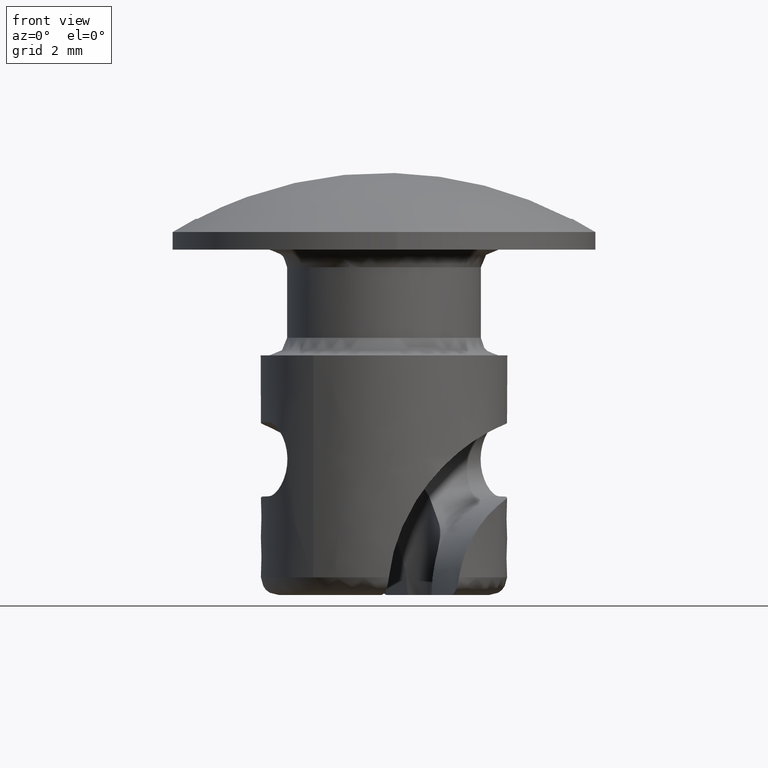
[diagram: clean part render]
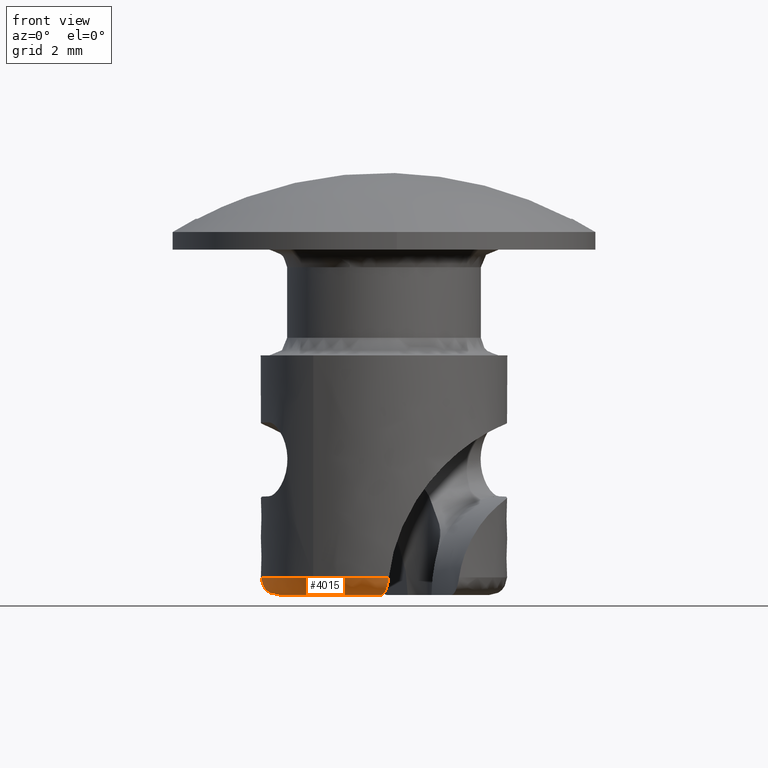
[diagram: same view with one face highlighted and labeled with its STEP entity id]
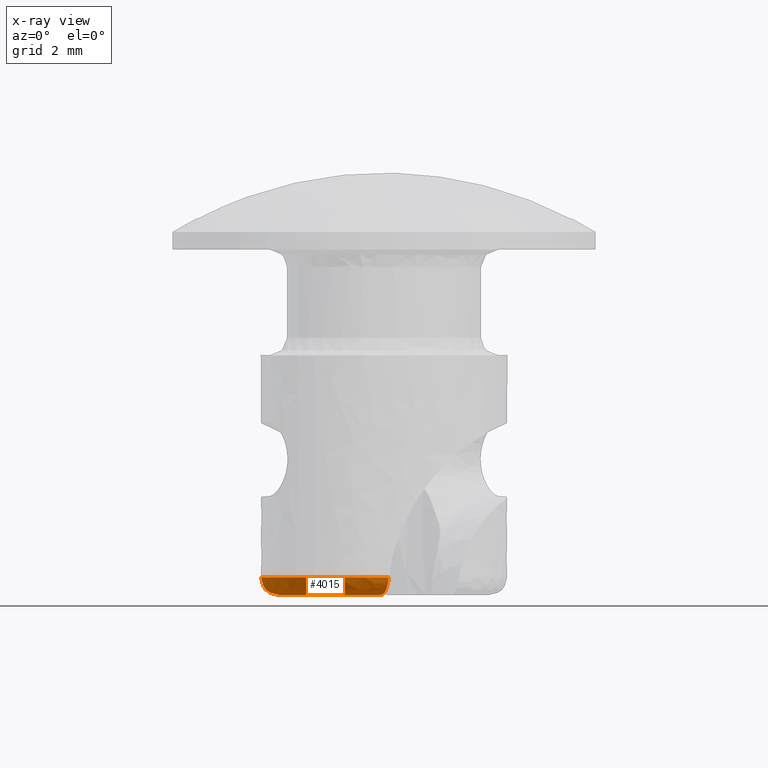
[diagram: x-ray of the same camera — body ghosted, the highlighted face saturated]
A machine part, front view. The second image highlights one B-rep face of the part: STEP entity #4015.
The next image is the same camera in x-ray: the body ghosted, the highlighted face saturated — about 0% of this face is hidden behind the body in this view.
In plain terms, the highlighted face is a freeform B-spline surface patch.
Its self-contained STEP definition (entity closure, byte-faithful):
#81=CARTESIAN_POINT('',(-2.008126187107555,-2.866605870476942,-9.299999999999999));
#82=VERTEX_POINT('',#81);
#88=CARTESIAN_POINT('',(0.137757022448160,-3.497287949649875,-9.299999999999999));
#89=VERTEX_POINT('',#88);
#90=CARTESIAN_POINT('',(-2.008126187107556,-2.866605870476942,-9.299999999999999));
#91=CARTESIAN_POINT('',(-1.041516516738341,-3.543739146619942,-9.299999999999999));
#92=CARTESIAN_POINT('',(0.137757022448157,-3.497287949649874,-9.299999999999999));
#100=(BOUNDED_CURVE()B_SPLINE_CURVE(2,(#90,#91,#92),.UNSPECIFIED.,.F.,.U.)B_SPLINE_CURVE_WITH_KNOTS((3,3),(0.742816691669973,1.0),.UNSPECIFIED.)CURVE()GEOMETRIC_REPRESENTATION_ITEM()RATIONAL_B_SPLINE_CURVE((0.903601217125584,0.900749427261948,1.0))REPRESENTATION_ITEM(''));
#101=EDGE_CURVE('',#82,#89,#100,.T.);
#431=CARTESIAN_POINT('',(-2.130075441178700,2.777188977165175,-9.299999999999999));
#432=VERTEX_POINT('',#431);
#474=CARTESIAN_POINT('',(-2.130075441178700,2.777188977165175,-9.299999999999999));
#475=CARTESIAN_POINT('',(-4.162072481353428,1.218668103212144,-9.299999999999999));
#476=CARTESIAN_POINT('',(-3.291595106735741,-1.189706540838253,-9.299999999999999));
#477=CARTESIAN_POINT('',(-2.915156806922763,-2.231209149354868,-9.299999999999999));
#478=CARTESIAN_POINT('',(-2.008126187107556,-2.866605870476942,-9.299999999999999));
#486=(BOUNDED_CURVE()B_SPLINE_CURVE(2,(#474,#475,#476,#477,#478),.UNSPECIFIED.,.F.,.U.)B_SPLINE_CURVE_WITH_KNOTS((3,2,3),(0.0,0.500000000000000,0.742816691669973),.UNSPECIFIED.)CURVE()GEOMETRIC_REPRESENTATION_ITEM()RATIONAL_B_SPLINE_CURVE((1.0,0.807043129310145,1.0,0.906293702048197,0.903601217125584))REPRESENTATION_ITEM(''));
#487=EDGE_CURVE('',#432,#82,#486,.T.);
#3531=CARTESIAN_POINT('',(-1.906978887296520,2.315908369668660,-9.800006999999789));
#3532=VERTEX_POINT('',#3531);
#3538=CARTESIAN_POINT('',(-2.130075441178700,2.777188977165175,-9.299999999999999));
#3539=CARTESIAN_POINT('',(-2.125248877906973,2.780890901965653,-9.332899340804433));
#3540=CARTESIAN_POINT('',(-2.119729902955236,2.781053801753919,-9.365716333681750));
#3541=CARTESIAN_POINT('',(-2.110320937446444,2.775826541301858,-9.414804443367130));
#3542=CARTESIAN_POINT('',(-2.106977078736828,2.773141069430067,-9.431211534933011));
#3543=CARTESIAN_POINT('',(-2.100041807436692,2.766040416150092,-9.463185300594144));
#3544=CARTESIAN_POINT('',(-2.092828270430283,2.757206855467864,-9.494496216401574));
#3545=CARTESIAN_POINT('',(-2.085017062095540,2.745003613596474,-9.524504294065780));
#3546=CARTESIAN_POINT('',(-2.076872109017019,2.731114848867014,-9.553852135704148));
#3547=CARTESIAN_POINT('',(-2.072609281010737,2.723277994270384,-9.568263199975457));
#3548=CARTESIAN_POINT('',(-2.059540317493385,2.697765907314260,-9.609566312355250));
#3549=CARTESIAN_POINT('',(-2.050398595498169,2.678031845807793,-9.634796694971222));
#3550=CARTESIAN_POINT('',(-2.035838023217665,2.644611688102727,-9.669322346367618));
#3551=CARTESIAN_POINT('',(-2.030815868831854,2.632764958773301,-9.680321288044235));
#3552=CARTESIAN_POINT('',(-2.020633988278147,2.608246634400372,-9.700805109014388));
#3553=CARTESIAN_POINT('',(-2.015462974297361,2.595552246454874,-9.710326475880224));
#3554=CARTESIAN_POINT('',(-1.999665425720986,2.556236964224384,-9.736814954541460));
#3555=CARTESIAN_POINT('',(-1.988693749045460,2.528235780237710,-9.751789893178833));
#3556=CARTESIAN_POINT('',(-1.966011162085480,2.469745217525326,-9.775914135017572));
#3557=CARTESIAN_POINT('',(-1.954506623200346,2.439795495012194,-9.784880573741907));
#3558=CARTESIAN_POINT('',(-1.931033005658395,2.378619179042488,-9.796940408065810));
#3559=CARTESIAN_POINT('',(-1.918946362609865,2.347084703695429,-9.800006767132572));
#3560=CARTESIAN_POINT('',(-1.906978887296520,2.315908369668660,-9.800006999999789));
#3561=B_SPLINE_CURVE_WITH_KNOTS('',3,(#3538,#3539,#3540,#3541,#3542,#3543,#3544,#3545,#3546,#3547,#3548,#3549,#3550,#3551,#3552,#3553,#3554,#3555,#3556,#3557,#3558,#3559,#3560),.UNSPECIFIED.,.F.,.U.,(4,2,2,1,2,2,2,2,2,2,2,4),(0.0,0.125000000000004,0.187500000000003,0.250000000000002,0.312500000000001,0.374999999999999,0.499999999999996,0.562499999999997,0.624999999999997,0.749999999999998,0.874999999999999,1.0),.UNSPECIFIED.);
#3562=EDGE_CURVE('',#432,#3532,#3561,.T.);
#3686=CARTESIAN_POINT('',(-0.080239420365395,-2.998926747257910,-9.800000000001170));
#3687=VERTEX_POINT('',#3686);
#3688=CARTESIAN_POINT('',(0.137757022448160,-3.497287949649875,-9.299999999999999));
#3689=CARTESIAN_POINT('',(0.134102867682884,-3.497431885604612,-9.334202884381082));
#3690=CARTESIAN_POINT('',(0.129589844882187,-3.494129095371487,-9.367712395802629));
#3691=CARTESIAN_POINT('',(0.118891358146238,-3.481011714675267,-9.433413832473939));
#3692=CARTESIAN_POINT('',(0.112618220102262,-3.471019069305557,-9.465954372819562));
#3693=CARTESIAN_POINT('',(0.098681584985865,-3.445126832580370,-9.527432733812978));
#3694=CARTESIAN_POINT('',(0.091032741933450,-3.429306977811069,-9.556446125955979));
#3695=CARTESIAN_POINT('',(0.078429111792636,-3.401372692172008,-9.597405823558662));
#3696=CARTESIAN_POINT('',(0.074012932576576,-3.391295789858078,-9.610693899675384));
#3697=CARTESIAN_POINT('',(0.064932056200169,-3.370087816938951,-9.635927491983178));
#3698=CARTESIAN_POINT('',(0.060261712047506,-3.358947556465782,-9.647904057013557));
#3699=CARTESIAN_POINT('',(0.045839360085445,-3.323983519515394,-9.681974645052417));
#3700=CARTESIAN_POINT('',(0.035672044523436,-3.298610745217398,-9.702237473268339));
#3701=CARTESIAN_POINT('',(0.014085067352248,-3.243862334759288,-9.737713504289664));
#3702=CARTESIAN_POINT('',(0.002982176416606,-3.215294919215809,-9.752409762534812));
#3703=CARTESIAN_POINT('',(-0.019939439519147,-3.155978028656515,-9.776104987689294));
#3704=CARTESIAN_POINT('',(-0.031871956698846,-3.124929721468300,-9.785146280699308));
#3705=CARTESIAN_POINT('',(-0.055962146940490,-3.062189559215258,-9.797071961601784));
#3706=CARTESIAN_POINT('',(-0.068065354128634,-3.030641279068961,-9.799999999890142));
#3707=CARTESIAN_POINT('',(-0.080239420365395,-2.998926747257910,-9.800000000001170));
#3708=B_SPLINE_CURVE_WITH_KNOTS('',3,(#3688,#3689,#3690,#3691,#3692,#3693,#3694,#3695,#3696,#3697,#3698,#3699,#3700,#3701,#3702,#3703,#3704,#3705,#3706,#3707),.UNSPECIFIED.,.F.,.U.,(4,2,2,2,2,2,2,2,2,4),(0.0,0.124999999999998,0.249999999999997,0.374999999999995,0.437499999999994,0.499999999999993,0.624999999999994,0.749999999999996,0.874999999999998,1.0),.UNSPECIFIED.);
#3709=EDGE_CURVE('',#89,#3687,#3708,.T.);
#3971=CARTESIAN_POINT('',(-1.498174620061049,2.558919597381507,-9.798789673025866));
#3972=CARTESIAN_POINT('',(-3.624602004453096,1.313956863124874,-9.798789673025862));
#3973=CARTESIAN_POINT('',(-2.789929111312573,-1.004436285639283,-9.798789673025866));
#3974=CARTESIAN_POINT('',(-1.957239696026213,-3.317320112721133,-9.798789673025864));
#3975=CARTESIAN_POINT('',(0.469908169868510,-2.927760750120992,-9.798789673025864));
#3976=CARTESIAN_POINT('',(-1.787952580963013,3.053867578152317,-9.838768718210641));
#3977=CARTESIAN_POINT('',(-4.325675006136167,1.568103299335330,-9.838768718210639));
#3978=CARTESIAN_POINT('',(-3.329559110453959,-1.198715039805226,-9.838768718210643));
#3979=CARTESIAN_POINT('',(-2.335810338270670,-3.958958440491120,-9.838768718210641));
#3980=CARTESIAN_POINT('',(0.560798129858702,-3.494050239222268,-9.838768718210638));
#3981=CARTESIAN_POINT('',(-1.767753467183850,3.019366988296417,-9.265231623115978));
#3982=CARTESIAN_POINT('',(-4.276806371391069,1.550387898324136,-9.265231623115982));
#3983=CARTESIAN_POINT('',(-3.291943938763951,-1.185172744704323,-9.265231623115978));
#3984=CARTESIAN_POINT('',(-2.309421887429391,-3.914232728613798,-9.265231623115982));
#3985=CARTESIAN_POINT('',(0.554462600967854,-3.454576754811312,-9.265231623115982));
#3993=(BOUNDED_SURFACE()B_SPLINE_SURFACE(2,2,((#3971,#3976,#3981),(#3972,#3977,#3982),(#3973,#3978,#3983),(#3974,#3979,#3984),(#3975,#3980,#3985)),.UNSPECIFIED.,.F.,.F.,.U.)B_SPLINE_SURFACE_WITH_KNOTS((3,2,3),(3,3),(0.0,5.055759610748178,10.102386170703280),(0.0,0.911186909536141),.UNSPECIFIED.)GEOMETRIC_REPRESENTATION_ITEM()RATIONAL_B_SPLINE_SURFACE(((0.897022627708515,0.588648590074159,0.897022367879840),(0.698406008202270,0.458311417492112,0.698405805904243),(0.919258331285049,0.603240212576559,0.919258065015651),(0.698804970107064,0.458573226230817,0.698804767693475),(0.896306408780956,0.588178589375326,0.896306149159738)))REPRESENTATION_ITEM('')SURFACE());
#3994=ORIENTED_EDGE('',*,*,#101,.F.);
#3995=ORIENTED_EDGE('',*,*,#487,.F.);
#3996=ORIENTED_EDGE('',*,*,#3562,.T.);
#3997=CARTESIAN_POINT('',(-0.080239420365395,-2.998926747257910,-9.800000000001170));
#3998=CARTESIAN_POINT('',(-2.160638544225829,-2.943263492865972,-9.800000907831201));
#3999=CARTESIAN_POINT('',(-2.837098380880110,-0.975127061741204,-9.800003500000479));
#4000=CARTESIAN_POINT('',(-3.513558217534389,0.993009369383563,-9.800006092169758));
#4001=CARTESIAN_POINT('',(-1.906978887296520,2.315908369668660,-9.800006999999789));
#4009=(BOUNDED_CURVE()B_SPLINE_CURVE(2,(#3997,#3998,#3999,#4000,#4001),.UNSPECIFIED.,.F.,.U.)B_SPLINE_CURVE_WITH_KNOTS((3,2,3),(0.0,0.500000000000000,1.0),.UNSPECIFIED.)CURVE()GEOMETRIC_REPRESENTATION_ITEM()RATIONAL_B_SPLINE_CURVE((1.0,0.821650837139200,1.0,0.821650837139200,1.0))REPRESENTATION_ITEM(''));
#4010=EDGE_CURVE('',#3687,#3532,#4009,.T.);
#4011=ORIENTED_EDGE('',*,*,#4010,.F.);
#4012=ORIENTED_EDGE('',*,*,#3709,.F.);
#4013=EDGE_LOOP('',(#3994,#3995,#3996,#4011,#4012));
#4014=FACE_OUTER_BOUND('',#4013,.T.);
#4015=ADVANCED_FACE('',(#4014),#3993,.T.);